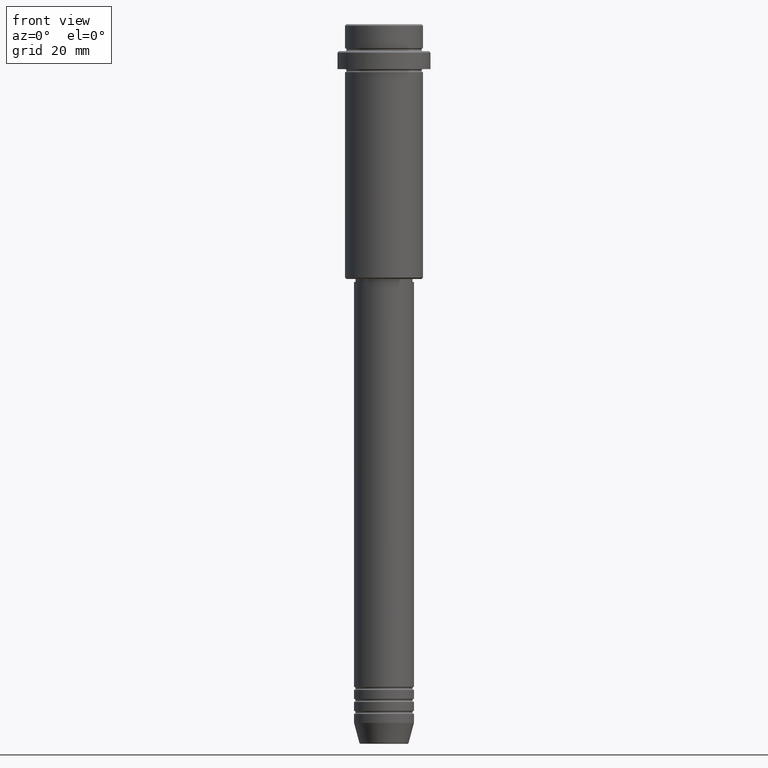
[diagram: clean part render]
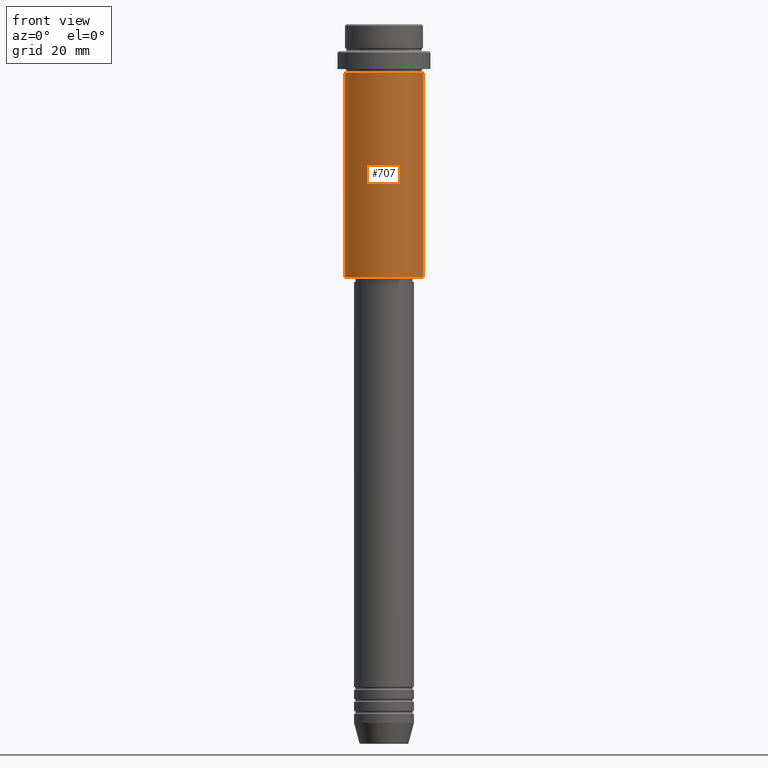
[diagram: same view with one face highlighted and labeled with its STEP entity id]
A machine part, front view. The second image highlights one B-rep face of the part: STEP entity #707.
In plain terms, the highlighted cylindrical surface (partial cylindrical patch) has radius 13 mm, axis along (-0, -0, 1).
Its self-contained STEP definition (entity closure, byte-faithful):
#106 = VERTEX_POINT ( 'NONE', #617 ) ;
#198 = AXIS2_PLACEMENT_3D ( 'NONE', #521, #410, #851 ) ;
#217 = LINE ( 'NONE', #411, #420 ) ;
#221 = EDGE_LOOP ( 'NONE', ( #534, #244, #415, #710 ) ) ;
#244 = ORIENTED_EDGE ( 'NONE', *, *, #451, .T. ) ;
#247 = AXIS2_PLACEMENT_3D ( 'NONE', #996, #1117, #674 ) ;
#264 = CIRCLE ( 'NONE', #247, 13.00000000000000000 ) ;
#314 = VERTEX_POINT ( 'NONE', #1294 ) ;
#361 = EDGE_CURVE ( 'NONE', #1009, #106, #217, .T. ) ;
#388 = CARTESIAN_POINT ( 'NONE',  ( -13.00000000000000000, 1.592040838891559095E-15, 0.000000000000000000 ) ) ;
#410 = DIRECTION ( 'NONE',  ( -0.000000000000000000, -0.000000000000000000, 1.000000000000000000 ) ) ;
#411 = CARTESIAN_POINT ( 'NONE',  ( 13.00000000000000000, 0.000000000000000000, 0.000000000000000000 ) ) ;
#415 = ORIENTED_EDGE ( 'NONE', *, *, #361, .T. ) ;
#420 = VECTOR ( 'NONE', #1306, 1000.000000000000000 ) ;
#431 = CARTESIAN_POINT ( 'NONE',  ( 13.00000000000000000, 0.000000000000000000, -84.50000000000001421 ) ) ;
#451 = EDGE_CURVE ( 'NONE', #314, #1009, #1331, .T. ) ;
#521 = CARTESIAN_POINT ( 'NONE',  ( 0.000000000000000000, 0.000000000000000000, -84.50000000000001421 ) ) ;
#533 = CYLINDRICAL_SURFACE ( 'NONE', #584, 13.00000000000000000 ) ;
#534 = ORIENTED_EDGE ( 'NONE', *, *, #942, .F. ) ;
#584 = AXIS2_PLACEMENT_3D ( 'NONE', #733, #1068, #975 ) ;
#613 = LINE ( 'NONE', #388, #1105 ) ;
#617 = CARTESIAN_POINT ( 'NONE',  ( 13.00000000000000000, 0.000000000000000000, -16.00000000000000000 ) ) ;
#674 = DIRECTION ( 'NONE',  ( 1.000000000000000000, 0.000000000000000000, 0.000000000000000000 ) ) ;
#707 = ADVANCED_FACE ( 'NONE', ( #1091 ), #533, .T. ) ;
#710 = ORIENTED_EDGE ( 'NONE', *, *, #957, .F. ) ;
#733 = CARTESIAN_POINT ( 'NONE',  ( 0.000000000000000000, 0.000000000000000000, 0.000000000000000000 ) ) ;
#761 = VERTEX_POINT ( 'NONE', #1260 ) ;
#851 = DIRECTION ( 'NONE',  ( -1.000000000000000000, 0.000000000000000000, 0.000000000000000000 ) ) ;
#942 = EDGE_CURVE ( 'NONE', #314, #761, #613, .T. ) ;
#957 = EDGE_CURVE ( 'NONE', #761, #106, #264, .T. ) ;
#975 = DIRECTION ( 'NONE',  ( 1.000000000000000000, 0.000000000000000000, 0.000000000000000000 ) ) ;
#996 = CARTESIAN_POINT ( 'NONE',  ( 0.000000000000000000, 0.000000000000000000, -16.00000000000000000 ) ) ;
#1009 = VERTEX_POINT ( 'NONE', #431 ) ;
#1068 = DIRECTION ( 'NONE',  ( -0.000000000000000000, -0.000000000000000000, 1.000000000000000000 ) ) ;
#1091 = FACE_OUTER_BOUND ( 'NONE', #221, .T. ) ;
#1105 = VECTOR ( 'NONE', #1282, 1000.000000000000000 ) ;
#1117 = DIRECTION ( 'NONE',  ( -0.000000000000000000, -0.000000000000000000, 1.000000000000000000 ) ) ;
#1260 = CARTESIAN_POINT ( 'NONE',  ( -13.00000000000000000, 1.592040838891559095E-15, -16.00000000000000000 ) ) ;
#1282 = DIRECTION ( 'NONE',  ( -0.000000000000000000, -0.000000000000000000, 1.000000000000000000 ) ) ;
#1294 = CARTESIAN_POINT ( 'NONE',  ( -13.00000000000000000, 1.592040838891559095E-15, -84.50000000000001421 ) ) ;
#1306 = DIRECTION ( 'NONE',  ( -0.000000000000000000, -0.000000000000000000, 1.000000000000000000 ) ) ;
#1331 = CIRCLE ( 'NONE', #198, 13.00000000000000000 ) ;